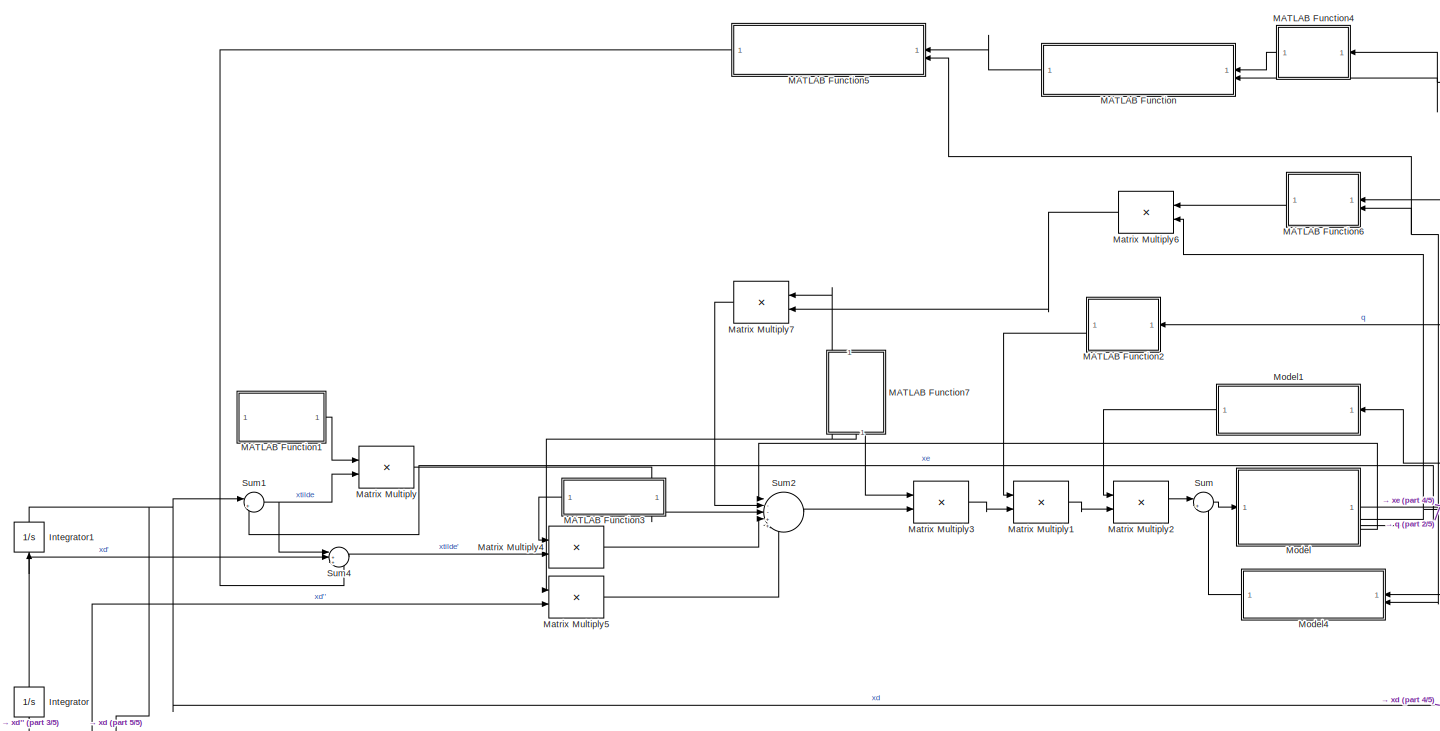
[diagram: root canvas - part 1/5, most of the canvas]
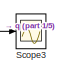
[diagram: root canvas - part 2/5, middle right region]
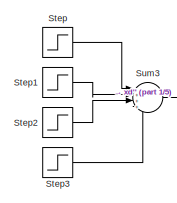
[diagram: root canvas - part 3/5, bottom left region]
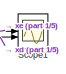
[diagram: root canvas - part 4/5, bottom right region]
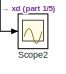
[diagram: root canvas - part 5/5, bottom left region]
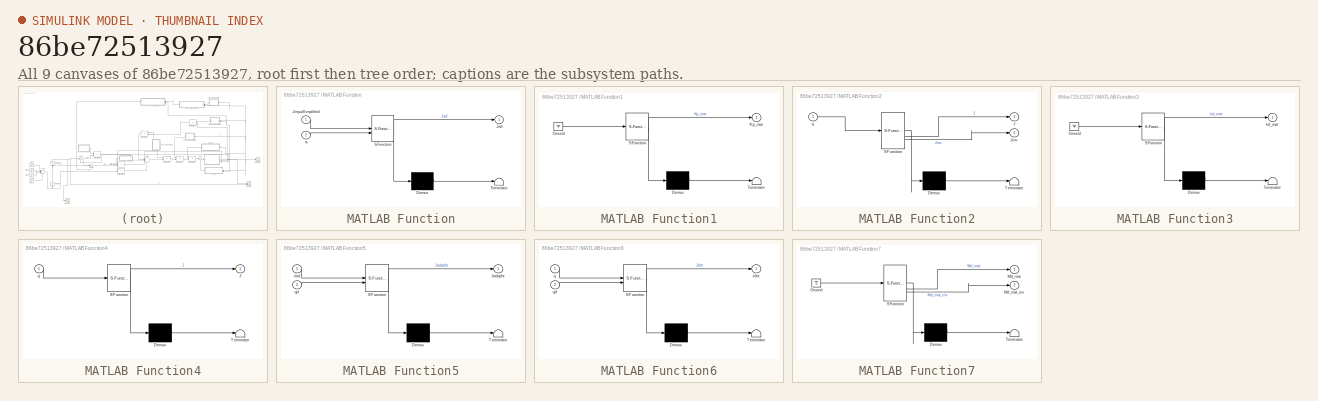
[diagram: thumbnail index - all 9 canvases of the model, root first then tree order]
MODEL slx_86be72513927
KIND model
CONFIG AbsTol = auto
CONFIG EnableMultiTasking = off
CONFIG FixedStep = auto
CONFIG MaxStep = auto
CONFIG MinStep = auto
CONFIG RelTol = 1e-3
CONFIG SampleTimeConstraint = Unconstrained
CONFIG SolverName = ode113
CONFIG StartTime = 0.0
CONFIG StopTime = 30
BLOCK [Integrator] Integrator
  InitialCondition = [0;0]
  NameLocation = right
BLOCK [Integrator] Integrator1
  InitialCondition = [xd_1;xd_2]
  NameLocation = right
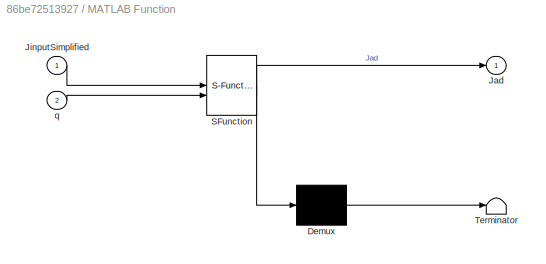
BLOCK [SubSystem] MATLAB Function
  ErrorFcn = Stateflow.Translate.translate
  LibrarySourceBlock = simulink/User-Defined\nFunctions/MATLAB Function
  PermitHierarchicalResolution = ExplicitOnly
  SFBlockType = MATLAB Function
  TreatAsAtomicUnit = on
BLOCK [Demux] MATLAB Function/ Demux 
  Outputs = 1
BLOCK [S-Function] MATLAB Function/ SFunction 
  EnableBusSupport = on
  FunctionName = sf_sfun
  PortCounts = [2 2]
  SFcnIsStateOwnerBlock = off
  SFunctionDeploymentMode = off
  Tag = Stateflow S-Function 2
BLOCK [Terminator] MATLAB Function/ Terminator 
BLOCK [Outport] MATLAB Function/Jad
BLOCK [Inport] MATLAB Function/JinputSimplified
BLOCK [Inport] MATLAB Function/q
  Port = 2
BLOCK [SubSystem] MATLAB Function1
  ErrorFcn = Stateflow.Translate.translate
  LibrarySourceBlock = simulink/User-Defined\nFunctions/MATLAB Function
  PermitHierarchicalResolution = ExplicitOnly
  SFBlockType = MATLAB Function
  TreatAsAtomicUnit = on
BLOCK [Demux] MATLAB Function1/ Demux 
  Outputs = 1
BLOCK [Ground] MATLAB Function1/ Ground 
BLOCK [S-Function] MATLAB Function1/ SFunction 
  EnableBusSupport = on
  FunctionName = sf_sfun
  Parameters = kp_1,kp_2
  PortCounts = [1 2]
  SFcnIsStateOwnerBlock = off
  SFunctionDeploymentMode = off
  Tag = Stateflow S-Function 1
BLOCK [Terminator] MATLAB Function1/ Terminator 
BLOCK [Outport] MATLAB Function1/Kp_mat
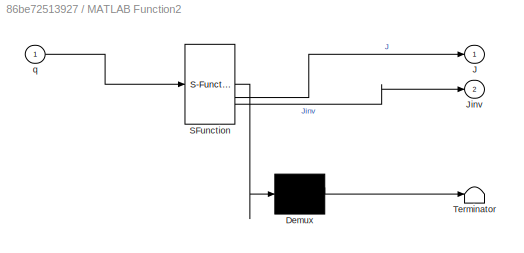
BLOCK [SubSystem] MATLAB Function2
  ErrorFcn = Stateflow.Translate.translate
  LibrarySourceBlock = simulink/User-Defined\nFunctions/MATLAB Function
  PermitHierarchicalResolution = ExplicitOnly
  SFBlockType = MATLAB Function
  TreatAsAtomicUnit = on
BLOCK [Demux] MATLAB Function2/ Demux 
  Outputs = 1
BLOCK [S-Function] MATLAB Function2/ SFunction 
  EnableBusSupport = on
  FunctionName = sf_sfun
  Parameters = a_1,a_2
  PortCounts = [1 3]
  SFcnIsStateOwnerBlock = off
  SFunctionDeploymentMode = off
  Tag = Stateflow S-Function 3
BLOCK [Terminator] MATLAB Function2/ Terminator 
BLOCK [Outport] MATLAB Function2/J
BLOCK [Outport] MATLAB Function2/Jinv
  Port = 2
BLOCK [Inport] MATLAB Function2/q
BLOCK [SubSystem] MATLAB Function3
  ErrorFcn = Stateflow.Translate.translate
  LibrarySourceBlock = simulink/User-Defined\nFunctions/MATLAB Function
  PermitHierarchicalResolution = ExplicitOnly
  SFBlockType = MATLAB Function
  TreatAsAtomicUnit = on
BLOCK [Demux] MATLAB Function3/ Demux 
  Outputs = 1
BLOCK [Ground] MATLAB Function3/ Ground 
BLOCK [S-Function] MATLAB Function3/ SFunction 
  EnableBusSupport = on
  FunctionName = sf_sfun
  Parameters = kp_1,kp_2
  PortCounts = [1 2]
  SFcnIsStateOwnerBlock = off
  SFunctionDeploymentMode = off
  Tag = Stateflow S-Function 4
BLOCK [Terminator] MATLAB Function3/ Terminator 
BLOCK [Outport] MATLAB Function3/kd_mat
BLOCK [SubSystem] MATLAB Function4
  ErrorFcn = Stateflow.Translate.translate
  LibrarySourceBlock = simulink/User-Defined\nFunctions/MATLAB Function
  PermitHierarchicalResolution = ExplicitOnly
  SFBlockType = MATLAB Function
  TreatAsAtomicUnit = on
BLOCK [Demux] MATLAB Function4/ Demux 
  Outputs = 1
BLOCK [S-Function] MATLAB Function4/ SFunction 
  EnableBusSupport = on
  FunctionName = sf_sfun
  Parameters = a_1,a_2
  PortCounts = [1 2]
  SFcnIsStateOwnerBlock = off
  SFunctionDeploymentMode = off
  Tag = Stateflow S-Function 5
BLOCK [Terminator] MATLAB Function4/ Terminator 
BLOCK [Outport] MATLAB Function4/J
BLOCK [Inport] MATLAB Function4/q
BLOCK [SubSystem] MATLAB Function5
  ErrorFcn = Stateflow.Translate.translate
  LibrarySourceBlock = simulink/User-Defined\nFunctions/MATLAB Function
  PermitHierarchicalResolution = ExplicitOnly
  SFBlockType = MATLAB Function
  TreatAsAtomicUnit = on
BLOCK [Demux] MATLAB Function5/ Demux 
  Outputs = 1
BLOCK [S-Function] MATLAB Function5/ SFunction 
  EnableBusSupport = on
  FunctionName = sf_sfun
  PortCounts = [2 2]
  SFcnIsStateOwnerBlock = off
  SFunctionDeploymentMode = off
  Tag = Stateflow S-Function 6
BLOCK [Terminator] MATLAB Function5/ Terminator 
BLOCK [Inport] MATLAB Function5/Jad
BLOCK [Outport] MATLAB Function5/Jadqdot
BLOCK [Inport] MATLAB Function5/qd
  Port = 2
BLOCK [SubSystem] MATLAB Function6
  ErrorFcn = Stateflow.Translate.translate
  LibrarySourceBlock = simulink/User-Defined\nFunctions/MATLAB Function
  PermitHierarchicalResolution = ExplicitOnly
  SFBlockType = MATLAB Function
  TreatAsAtomicUnit = on
BLOCK [Demux] MATLAB Function6/ Demux 
  Outputs = 1
BLOCK [S-Function] MATLAB Function6/ SFunction 
  EnableBusSupport = on
  FunctionName = sf_sfun
  Parameters = a_1,a_2
  PortCounts = [2 2]
  SFcnIsStateOwnerBlock = off
  SFunctionDeploymentMode = off
  Tag = Stateflow S-Function 7
BLOCK [Terminator] MATLAB Function6/ Terminator 
BLOCK [Outport] MATLAB Function6/Jdot
BLOCK [Inport] MATLAB Function6/q
BLOCK [Inport] MATLAB Function6/qd
  Port = 2
BLOCK [SubSystem] MATLAB Function7
  ErrorFcn = Stateflow.Translate.translate
  LibrarySourceBlock = simulink/User-Defined\nFunctions/MATLAB Function
  NameLocation = left
  PermitHierarchicalResolution = ExplicitOnly
  SFBlockType = MATLAB Function
  TreatAsAtomicUnit = on
BLOCK [Demux] MATLAB Function7/ Demux 
  Outputs = 1
BLOCK [Ground] MATLAB Function7/ Ground 
BLOCK [S-Function] MATLAB Function7/ SFunction 
  EnableBusSupport = on
  FunctionName = sf_sfun
  Parameters = md_1,md_2
  PortCounts = [1 3]
  SFcnIsStateOwnerBlock = off
  SFunctionDeploymentMode = off
  Tag = Stateflow S-Function 8
BLOCK [Terminator] MATLAB Function7/ Terminator 
BLOCK [Outport] MATLAB Function7/Md_mat
BLOCK [Outport] MATLAB Function7/Md_mat_inv
  Port = 2
BLOCK [Product] Matrix Multiply
  Multiplication = Matrix(*)
BLOCK [Product] Matrix Multiply1
  Multiplication = Matrix(*)
BLOCK [Product] Matrix Multiply2
  Multiplication = Matrix(*)
BLOCK [Product] Matrix Multiply3
  Multiplication = Matrix(*)
BLOCK [Product] Matrix Multiply4
  Multiplication = Matrix(*)
BLOCK [Product] Matrix Multiply5
  Multiplication = Matrix(*)
BLOCK [Product] Matrix Multiply6
  Multiplication = Matrix(*)
BLOCK [Product] Matrix Multiply7
  Multiplication = Matrix(*)
BLOCK [ModelReference] Model
  ModelNameDialog = two_link_extended.slx
  ModelReferenceVersion = 1.3
BLOCK [ModelReference] Model1
  ModelNameDialog = B_sim_matrix.slx
  ModelReferenceVersion = 13.0
  NameLocation = top
BLOCK [ModelReference] Model4
  ModelNameDialog = n_vector.slx
  ModelReferenceVersion = 1.3
  PortSchema = {"entries":[{"content":{"sides":[{"content":{"connectorIds":["In2","In1"]},"type":"ConnectorPlacement.EquallySpacedRectSide","uuid":"0004a852-6b57-412e-a247-f7a948c02aef"},{"content":{"connectorIds":["Out1"],"side":"RIGHT"},"type":"ConnectorPlacement.EquallySpacedRectSide","uuid":"2c6a1f56-b264-4a50-8175-f4e8d5862eda"},{"content":{"connectorIds":[],"side":"TOP"},"type":"ConnectorPlacement.EquallyS...<+246ch>
BLOCK [Scope] Scope1
  Floating = off
  NumInputPorts = 2
  ScopeSpecificationString = Simulink.scopes.TimeScopeBlockCfg('CurrentConfiguration', extmgr.ConfigurationSet(extmgr.Configuration('Core','General UI',true),extmgr.Configuration('Core','Source UI',true),extmgr.Configuration('Sources','WiredSimulink',true),extmgr.Configuration('Visuals','Time Domain',true,'SerializedDisplays',{struct('MinYLimReal','-0.92911','MaxYLimReal','2.94524','YLabelReal','','MinYLimMag','0.00000','MaxY...<+1393ch>
BLOCK [Scope] Scope2
  Floating = off
  NumInputPorts = 2
  ScopeSpecificationString = Simulink.scopes.TimeScopeBlockCfg('CurrentConfiguration', extmgr.ConfigurationSet(extmgr.Configuration('Core','General UI',true),extmgr.Configuration('Core','Source UI',true),extmgr.Configuration('Sources','WiredSimulink',true,'DataLoggingVariableName','ScopeData1'),extmgr.Configuration('Visuals','Time Domain',true,'SerializedDisplays',{struct('MinYLimReal','-0.40581','MaxYLimReal','2.94524','YLab...<+1431ch>
BLOCK [Scope] Scope3
  Floating = off
  NumInputPorts = 2
  ScopeSpecificationString = Simulink.scopes.TimeScopeBlockCfg('CurrentConfiguration', extmgr.ConfigurationSet(extmgr.Configuration('Core','General UI',true),extmgr.Configuration('Core','Source UI',true),extmgr.Configuration('Sources','WiredSimulink',true,'DataLoggingVariableName','ScopeData2'),extmgr.Configuration('Visuals','Time Domain',true,'SerializedDisplays',{struct('MinYLimReal','-3.05803','MaxYLimReal','2.95777','YLab...<+1429ch>
BLOCK [Step] Step
  After = [0.1;0.05]
  Before = [0.0;0.00]
  SampleTime = 0
  Time = 0
BLOCK [Step] Step1
  After = [-0.1;-0.05]
  Before = [0.0;0.00]
  SampleTime = 0
BLOCK [Step] Step2
  After = [-0.1;-0.05]
  Before = [0.0;0.00]
  SampleTime = 0
  Time = 5
BLOCK [Step] Step3
  After = [0.1;0.05]
  Before = [0.0;0.00]
  SampleTime = 0
  Time = 6
BLOCK [Sum] Sum
  Inputs = |++
BLOCK [Sum] Sum1
  Inputs = |+-
BLOCK [Sum] Sum2
  Inputs = |--+++
BLOCK [Sum] Sum3
  Inputs = |++++
BLOCK [Sum] Sum4
  Inputs = |++-
NET Integrator1:1 -> Scope1:2, Scope2:1, Sum1:1
NET Integrator:1 -> Integrator1:1, Sum4:2
LINE MATLAB Function1:1 -> Matrix Multiply:1
LINE MATLAB Function2:2 -> Matrix Multiply1:1
LINE MATLAB Function3:1 -> Matrix Multiply4:1
LINE MATLAB Function4:1 -> MATLAB Function:1
LINE MATLAB Function5:1 -> Sum4:3
LINE MATLAB Function6:1 -> Matrix Multiply6:1
NET MATLAB Function7:1 -> Matrix Multiply5:1, Matrix Multiply7:1
LINE MATLAB Function7:2 -> Matrix Multiply3:1
LINE MATLAB Function:1 -> MATLAB Function5:1
LINE Matrix Multiply1:1 -> Matrix Multiply2:2
LINE Matrix Multiply2:1 -> Sum:1
LINE Matrix Multiply3:1 -> Matrix Multiply1:2
LINE Matrix Multiply4:1 -> Sum2:4
LINE Matrix Multiply5:1 -> Sum2:5
LINE Matrix Multiply6:1 -> Matrix Multiply7:2
LINE Matrix Multiply7:1 -> Sum2:2
LINE Matrix Multiply:1 -> Sum2:3
LINE Model1:1 -> Matrix Multiply2:1
LINE Model4:1 -> Sum:2
NET Model:1 -> MATLAB Function2:1, MATLAB Function4:1, MATLAB Function6:1, MATLAB Function:2, Model1:1, Model4:1, Scope3:1
NET Model:2 -> MATLAB Function5:2, MATLAB Function6:2, Matrix Multiply6:2, Model4:2
NET Model:3 -> Scope1:1, Sum1:2
LINE Model:4 -> Sum2:1
LINE Step1:1 -> Sum3:2
LINE Step2:1 -> Sum3:3
LINE Step3:1 -> Sum3:4
LINE Step:1 -> Sum3:1
NET Sum1:1 -> Matrix Multiply:2, Sum4:1
LINE Sum2:1 -> Matrix Multiply3:2
NET Sum3:1 -> Integrator:1, Matrix Multiply5:2
LINE Sum4:1 -> Matrix Multiply4:2
LINE Sum:1 -> Model:1
note: NET lines group one-source signal fan-out (src -> all destinations, sorted); 1:1 wires keep LINE
CHART MATLAB Function1 states=1 transitions=1
  STATE_LABEL 'eML_blk_kernel()'
  STATE_LABEL 'SCRIPT:\nfunction Kp_mat = fcn(kp_1, kp_2)\n    Kp_mat = [kp_1,0;\n              0,kp_2];\nend\n'
CHART MATLAB Function states=1 transitions=1
  STATE_LABEL 'eML_blk_kernel()'
  STATE_LABEL "SCRIPT:\nfunction Jad = fcn(JinputSimplified,q)\n    theta1 = q(1);\n    theta2 = q(2);\n    Ro3 = [ cos(theta1+theta2),-sin(theta1+theta2);\n            sin(theta1+theta2),cos(theta1+theta2)];\n    Ro3 = Ro3';\n    Jad_temp = JinputSimplified(1:2,1:2);\n    Jad_temp = Ro3*Jad_temp;\n    Jad = Jad_temp;\nend\n"
CHART MATLAB Function2 states=1 transitions=1
  STATE_LABEL 'eML_blk_kernel()'
  STATE_LABEL 'SCRIPT:\nfunction [J,Jinv] = fcn(q,a_1, a_2)\n    theta1 = q(1);\n    theta2 = q(2);\n    J = [-a_1*sin(theta1)-a_2*sin(theta1+theta2),-a_2*sin(theta1+theta2);\n        a_1*cos(theta1)+a_2*cos(theta1+theta2),a_2*cos(theta1+theta2)];\n    Jinv = pinv(J);\n\nend\n'
CHART MATLAB Function3 states=1 transitions=1
  STATE_LABEL 'eML_blk_kernel()'
  STATE_LABEL 'SCRIPT:\nfunction kd_mat = fcn(kp_1, kp_2)\n    kd_mat = [kp_1,0;\n              0,kp_2];\nend\n'
CHART MATLAB Function4 states=1 transitions=1
  STATE_LABEL 'eML_blk_kernel()'
  STATE_LABEL 'SCRIPT:\nfunction J = fcn(q,a_1, a_2)\n    theta1 = q(1);\n    theta2 = q(2);\n    J = [-a_1*sin(theta1)-a_2*sin(theta1+theta2),-a_2*sin(theta1+theta2),0;\n        a_1*cos(theta1)+a_2*cos(theta1+theta2),a_2*cos(theta1+theta2),0;\n        0,0,0;\n        0,0,0;\n        0,0,0;\n        1,1,1;];\n\nend\n'
CHART MATLAB Function5 states=1 transitions=1
  STATE_LABEL 'eML_blk_kernel()'
  STATE_LABEL 'SCRIPT:\nfunction Jadqdot = multiply(Jad,qd)\n    qd = [qd(1);qd(2)];\n    Jadqdot = Jad*qd;\nend\n'
CHART MATLAB Function6 states=1 transitions=1
  STATE_LABEL 'eML_blk_kernel()'
  STATE_LABEL 'SCRIPT:\nfunction Jdot = fcn(q,qd,a_1, a_2)\n    theta1 = q(1);\n    theta2 = q(2);\n    theta1d = qd(1);\n    theta2d = qd(2);\n    Jdot = [-a_1*theta1d*cos(theta1)-a_2*(theta1d+theta2d)*cos(theta1+theta2),-a_2*(theta1d+theta2d)*cos(theta1+theta2);\n        -a_1*theta1d*sin(theta1)-a_2*(theta1d+theta2d)*sin(theta1+theta2),-a_2*(theta1d+theta2d)*sin(theta1+theta2)];\n\nend\n'
CHART MATLAB Function7 states=1 transitions=1
  STATE_LABEL 'eML_blk_kernel()'
  STATE_LABEL 'SCRIPT:\nfunction [Md_mat,Md_mat_inv] = fcn(md_1, md_2)\n    Md_mat = [md_1,0;\n              0,md_2];\n    Md_mat_inv = inv(Md_mat);\nend\n'
CHART  states=0 transitions=0
CHART  states=0 transitions=0
CHART  states=0 transitions=0
CHART  states=0 transitions=0
CHART  states=0 transitions=0
CHART  states=0 transitions=0
CHART  states=0 transitions=0
CHART  states=0 transitions=0
